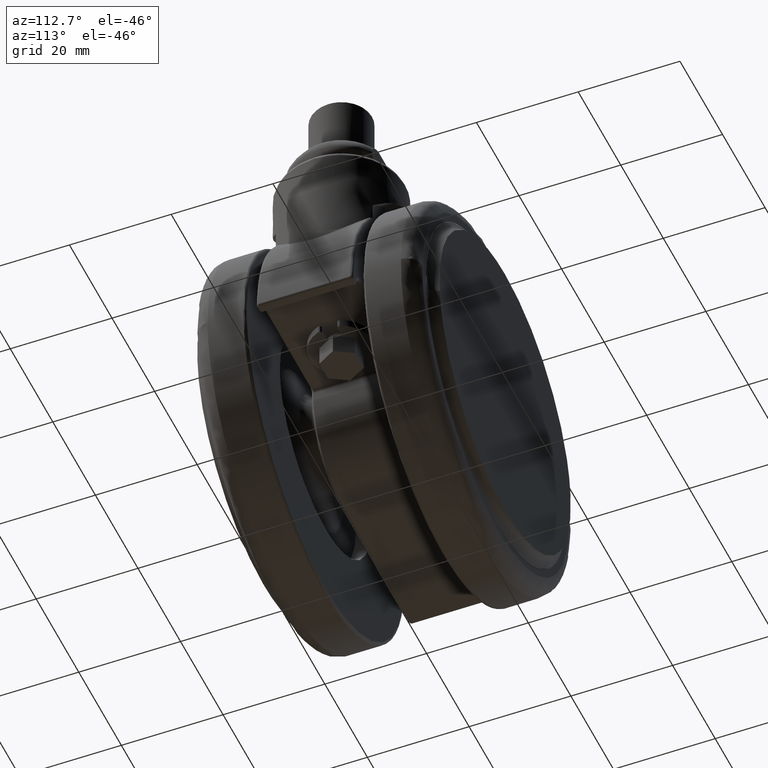
[diagram: clean part render]
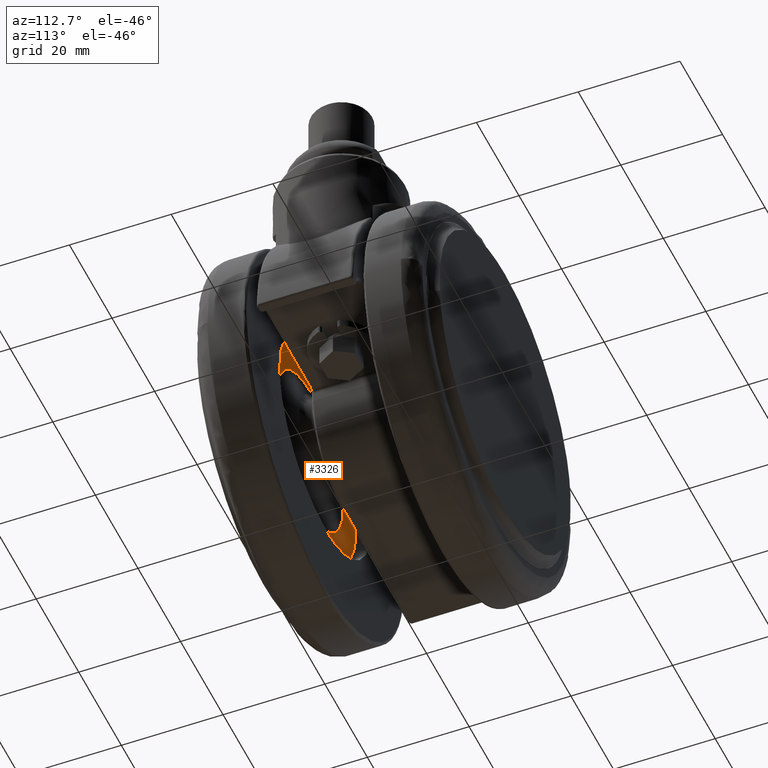
[diagram: same view with one face highlighted and labeled with its STEP entity id]
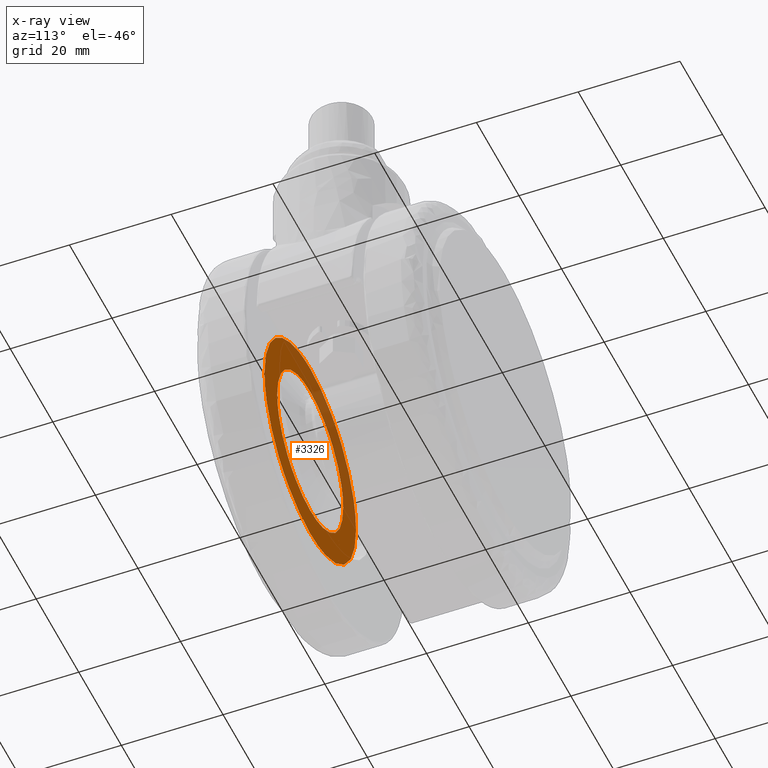
[diagram: x-ray of the same camera — body ghosted, the highlighted face saturated]
A machine part, auxiliary view. The second image highlights one B-rep face of the part: STEP entity #3326.
The next image is the same camera in x-ray: the body ghosted, the highlighted face saturated — about 31% of this face is hidden behind the body in this view.
In plain terms, the highlighted face is a freeform B-spline surface patch.
Its self-contained STEP definition (entity closure, byte-faithful):
#2337=CARTESIAN_POINT('',(-30.669495497487581,-14.499999882196141,-29.256697697972481));
#2338=VERTEX_POINT('',#2337);
#2339=CARTESIAN_POINT('',(-35.500000000000377,-14.500000000000000,-40.500001336303519));
#2340=VERTEX_POINT('',#2339);
#2341=CARTESIAN_POINT('',(-30.669495497487581,-14.499999882196141,-29.256697697972481));
#2342=CARTESIAN_POINT('',(-31.477567262422429,-14.499999890228009,-30.023263420706840));
#2343=CARTESIAN_POINT('',(-32.820606348267667,-14.499999906812141,-31.606069713385640));
#2344=CARTESIAN_POINT('',(-34.123550131824892,-14.499999931561360,-33.968152755133140));
#2345=CARTESIAN_POINT('',(-34.858708807733962,-14.499999952543130,-35.970684704439300));
#2346=CARTESIAN_POINT('',(-35.360992765207513,-14.499999974257310,-38.043108724709242));
#2347=CARTESIAN_POINT('',(-35.500111041050609,-14.499999990046110,-39.549980783685882));
#2348=CARTESIAN_POINT('',(-35.500000000000377,-14.500000000000000,-40.500001336303519));
#2349=B_SPLINE_CURVE_WITH_KNOTS('',3,(#2341,#2342,#2343,#2344,#2345,#2346,#2347,#2348),.UNSPECIFIED.,.F.,.U.,(4,1,1,1,1,4),(0.000000020668866,3.341425945185836,6.191487787261176,8.058725765944772,9.729445595256996,12.579482740062110),.UNSPECIFIED.);
#2350=EDGE_CURVE('',#2338,#2340,#2349,.T.);
#2360=CARTESIAN_POINT('',(-9.330504502513387,-14.499999882196120,-51.743302302027452));
#2361=VERTEX_POINT('',#2360);
#2367=CARTESIAN_POINT('',(-20.000000000000451,-14.500000000000000,-56.0));
#2368=VERTEX_POINT('',#2367);
#2369=CARTESIAN_POINT('',(-20.000000000000451,-14.500000000000000,-56.0));
#2370=CARTESIAN_POINT('',(-19.141922558592871,-14.499999990525779,-56.000059167950802));
#2371=CARTESIAN_POINT('',(-17.425786372958960,-14.499999971577671,-55.857146680003652));
#2372=CARTESIAN_POINT('',(-15.011811896413860,-14.499999944924490,-55.243052475639963));
#2373=CARTESIAN_POINT('',(-12.979409562662671,-14.499999922484390,-54.368568237031951));
#2374=CARTESIAN_POINT('',(-11.080252796863080,-14.499999901515370,-53.238421771153000));
#2375=CARTESIAN_POINT('',(-9.952887800787133,-14.499999889068000,-52.334011934243229));
#2376=CARTESIAN_POINT('',(-9.330504502513387,-14.499999882196120,-51.743302302027452));
#2377=B_SPLINE_CURVE_WITH_KNOTS('',3,(#2369,#2370,#2371,#2372,#2373,#2374,#2375,#2376),.UNSPECIFIED.,.F.,.U.,(4,1,1,1,1,4),(0.000000016778330,2.574226666153065,5.148469324482492,7.446871905364121,9.193672847624599,11.767899496996611),.UNSPECIFIED.);
#2378=EDGE_CURVE('',#2368,#2361,#2377,.T.);
#2380=CARTESIAN_POINT('',(-35.500000000000377,-14.500000000000000,-40.500001336303519));
#2381=CARTESIAN_POINT('',(-35.500134097890431,-14.500000000000011,-41.514476792830898));
#2382=CARTESIAN_POINT('',(-35.309461115132883,-14.499999999999950,-43.448264680210229));
#2383=CARTESIAN_POINT('',(-34.574879187454407,-14.500000000000130,-45.952643102220918));
#2384=CARTESIAN_POINT('',(-33.481816399635079,-14.500000000000000,-48.282208255777931));
#2385=CARTESIAN_POINT('',(-32.082876484610168,-14.499999999999940,-50.334768483793148));
#2386=CARTESIAN_POINT('',(-30.083909409520938,-14.499999999999931,-52.383425120723977));
#2387=CARTESIAN_POINT('',(-27.848297862227021,-14.500000000000190,-53.968250283793637));
#2388=CARTESIAN_POINT('',(-25.624393100417361,-14.500000000000060,-54.994985178710088));
#2389=CARTESIAN_POINT('',(-23.074979527317431,-14.499999999999851,-55.776929922890872));
#2390=CARTESIAN_POINT('',(-21.268135946908910,-14.499999999999980,-56.000370725086661));
#2391=CARTESIAN_POINT('',(-20.000000000000451,-14.500000000000000,-56.0));
#2392=B_SPLINE_CURVE_WITH_KNOTS('',3,(#2380,#2381,#2382,#2383,#2384,#2385,#2386,#2387,#2388,#2389,#2390,#2391),.UNSPECIFIED.,.F.,.U.,(4,1,1,1,1,1,1,1,1,4),(0.000000072784104,3.043400181008991,5.801523783213373,7.798784197326526,10.747120632136349,13.219848628159509,16.358386856784549,18.926287682553600,20.543104018920321,24.347380506074320),.UNSPECIFIED.);
#2393=EDGE_CURVE('',#2340,#2368,#2392,.T.);
#2416=CARTESIAN_POINT('',(-20.000000000000451,-14.500000000000000,-25.0));
#2417=VERTEX_POINT('',#2416);
#2418=CARTESIAN_POINT('',(-20.000000000000451,-14.500000000000000,-25.0));
#2419=CARTESIAN_POINT('',(-20.827430145764971,-14.499999990864231,-24.999953429217250));
#2420=CARTESIAN_POINT('',(-22.543571857271591,-14.499999971915900,-25.137719835419240));
#2421=CARTESIAN_POINT('',(-24.959965012056760,-14.499999945236141,-25.744781240391269));
#2422=CARTESIAN_POINT('',(-26.964133189063169,-14.499999923107749,-26.607145262452530));
#2423=CARTESIAN_POINT('',(-28.869352377237700,-14.499999902071840,-27.725661800804911));
#2424=CARTESIAN_POINT('',(-30.002674683321921,-14.499999889558680,-28.623767592406558));
#2425=CARTESIAN_POINT('',(-30.669495497487581,-14.499999882196141,-29.256697697972481));
#2426=B_SPLINE_CURVE_WITH_KNOTS('',3,(#2418,#2419,#2420,#2421,#2422,#2423,#2424,#2425),.UNSPECIFIED.,.F.,.U.,(4,1,1,1,1,4),(0.000000016778230,2.482288138000779,5.148469324481711,7.446871905363898,9.009798472909171,11.767899496996650),.UNSPECIFIED.);
#2427=EDGE_CURVE('',#2417,#2338,#2426,.T.);
#2429=CARTESIAN_POINT('',(-4.500000000000509,-14.500000000000000,-40.499998663696260));
#2430=VERTEX_POINT('',#2429);
#2431=CARTESIAN_POINT('',(-4.500000000000509,-14.500000000000000,-40.499998663696260));
#2432=CARTESIAN_POINT('',(-4.499920812351644,-14.499999999999920,-39.612335621088263));
#2433=CARTESIAN_POINT('',(-4.642028402552882,-14.500000000000110,-37.963856615322953));
#2434=CARTESIAN_POINT('',(-5.321554897228752,-14.500000000000011,-35.250237761994519));
#2435=CARTESIAN_POINT('',(-6.477112061502640,-14.499999999999799,-32.727338359356942));
#2436=CARTESIAN_POINT('',(-8.035961741153928,-14.500000000000361,-30.556992094440929));
#2437=CARTESIAN_POINT('',(-9.561993665268687,-14.499999999999840,-28.983440899603529));
#2438=CARTESIAN_POINT('',(-11.302387139207561,-14.499999999999860,-27.599192324685770));
#2439=CARTESIAN_POINT('',(-13.509476504762549,-14.500000000000950,-26.330850927265221));
#2440=CARTESIAN_POINT('',(-16.481179085050019,-14.499999999999449,-25.277829996310651));
#2441=CARTESIAN_POINT('',(-18.731880648638601,-14.500000000000350,-24.999670758941409));
#2442=CARTESIAN_POINT('',(-20.000000000000451,-14.500000000000000,-25.0));
#2443=B_SPLINE_CURVE_WITH_KNOTS('',3,(#2431,#2432,#2433,#2434,#2435,#2436,#2437,#2438,#2439,#2440,#2441,#2442),.UNSPECIFIED.,.F.,.U.,(4,1,1,1,1,1,1,1,1,4),(0.000000072740015,2.662977138853307,4.945555510927047,8.369422413990852,10.937330572854560,12.934505017157200,14.931788349140790,17.594783111629710,20.543104018913411,24.347380506074060),.UNSPECIFIED.);
#2444=EDGE_CURVE('',#2430,#2417,#2443,.T.);
#2446=CARTESIAN_POINT('',(-9.330504502513387,-14.499999882196120,-51.743302302027452));
#2447=CARTESIAN_POINT('',(-8.641327760724145,-14.499999889047251,-51.089421006870239));
#2448=CARTESIAN_POINT('',(-7.340397624084070,-14.499999904601580,-49.604915257372213));
#2449=CARTESIAN_POINT('',(-5.794174157349572,-14.499999932285039,-46.962771294791693));
#2450=CARTESIAN_POINT('',(-4.748292163389371,-14.499999964647230,-43.874093999641289));
#2451=CARTESIAN_POINT('',(-4.499794439832975,-14.499999987986479,-41.646582658005272));
#2452=CARTESIAN_POINT('',(-4.500000000000509,-14.500000000000000,-40.499998663696260));
#2453=B_SPLINE_CURVE_WITH_KNOTS('',3,(#2446,#2447,#2448,#2449,#2450,#2451,#2452),.UNSPECIFIED.,.F.,.U.,(4,1,1,1,4),(0.000000020669406,2.850037165460256,5.896649225045184,9.139778525155560,12.579482740062341),.UNSPECIFIED.);
#2454=EDGE_CURVE('',#2361,#2430,#2453,.T.);
#3222=CARTESIAN_POINT('',(-43.647849916658032,-14.500000000000000,-64.147849916657648));
#3223=CARTESIAN_POINT('',(-43.647849916658032,-14.500000000000000,-16.852148929992470));
#3224=CARTESIAN_POINT('',(3.647851070007004,-14.500000000000000,-64.147849916657648));
#3225=CARTESIAN_POINT('',(3.647851070007004,-14.500000000000000,-16.852148929992470));
#3226=B_SPLINE_SURFACE_WITH_KNOTS('',1,1,((#3222,#3224),(#3223,#3225)),.UNSPECIFIED.,.F.,.F.,.U.,(2,2),(2,2),(0.0,47.295700986665182),(0.0,47.295700986665040),.UNSPECIFIED.);
#3227=CARTESIAN_POINT('',(-41.500000000000377,-14.500000000000000,-40.500001720237272));
#3228=VERTEX_POINT('',#3227);
#3229=CARTESIAN_POINT('',(-20.000000000000451,-14.500000000000000,-62.0));
#3230=VERTEX_POINT('',#3229);
#3231=CARTESIAN_POINT('',(-41.500000000000377,-14.500000000000000,-40.500001720237272));
#3232=CARTESIAN_POINT('',(-41.500126563532710,-14.499999999999980,-41.775255317484962));
#3233=CARTESIAN_POINT('',(-41.331233791522948,-14.500000000000080,-43.666078085760439));
#3234=CARTESIAN_POINT('',(-40.685130606834193,-14.499999999999860,-46.543429417008483));
#3235=CARTESIAN_POINT('',(-39.736181730212671,-14.500000000000281,-49.247850240463592));
#3236=CARTESIAN_POINT('',(-37.979035355501850,-14.499999999999730,-52.511443525608527));
#3237=CARTESIAN_POINT('',(-35.816539703963826,-14.500000000000369,-55.196466229677043));
#3238=CARTESIAN_POINT('',(-33.597369640632770,-14.499999999999909,-57.207497910752899));
#3239=CARTESIAN_POINT('',(-31.425328932212249,-14.500000000000110,-58.787740226841613));
#3240=CARTESIAN_POINT('',(-29.137491614297002,-14.499999999999950,-60.028706393164931));
#3241=CARTESIAN_POINT('',(-26.508529133303369,-14.499999999999950,-61.042760856960477));
#3242=CARTESIAN_POINT('',(-23.605828955675850,-14.500000000000430,-61.788874292361577));
#3243=CARTESIAN_POINT('',(-21.319221615729589,-14.499999999999179,-62.000125565071663));
#3244=CARTESIAN_POINT('',(-20.000000000000451,-14.500000000000000,-62.0));
#3245=B_SPLINE_CURVE_WITH_KNOTS('',3,(#3231,#3232,#3233,#3234,#3235,#3236,#3237,#3238,#3239,#3240,#3241,#3242,#3243,#3244),.UNSPECIFIED.,.F.,.U.,(4,1,1,1,1,1,1,1,1,1,1,4),(0.000000067775531,3.825727720787132,5.672653906694070,8.838812937935447,12.400726099247921,16.754205018996810,19.128760438035300,21.371450701752519,24.801436467335218,26.912209458372960,29.814522042103981,33.772173035191301),.UNSPECIFIED.);
#3246=EDGE_CURVE('',#3228,#3230,#3245,.T.);
#3247=ORIENTED_EDGE('',*,*,#3246,.F.);
#3248=CARTESIAN_POINT('',(-34.799623111374622,-14.499999999995120,-24.904451362838429));
#3249=VERTEX_POINT('',#3248);
#3250=CARTESIAN_POINT('',(-34.799623111374622,-14.499999999995120,-24.904451362838429));
#3251=CARTESIAN_POINT('',(-35.623664166251721,-14.499999999995349,-25.686392687299101));
#3252=CARTESIAN_POINT('',(-37.330429395316848,-14.499999999996000,-27.584573136799900));
#3253=CARTESIAN_POINT('',(-39.158362510062631,-14.499999999996829,-30.534204767516151));
#3254=CARTESIAN_POINT('',(-40.379103388177462,-14.499999999997851,-33.478379541539233));
#3255=CARTESIAN_POINT('',(-41.251729994884037,-14.499999999998670,-36.637695225416408));
#3256=CARTESIAN_POINT('',(-41.500255907731862,-14.499999999999529,-39.000459270632852));
#3257=CARTESIAN_POINT('',(-41.500000000000377,-14.500000000000000,-40.500001720237272));
#3258=B_SPLINE_CURVE_WITH_KNOTS('',3,(#3250,#3251,#3252,#3253,#3254,#3255,#3256,#3257),.UNSPECIFIED.,.F.,.U.,(4,1,1,1,1,4),(0.000000019476680,3.407994578102032,7.633935009487921,10.360314207968630,12.950399338020461,17.448959929504721),.UNSPECIFIED.);
#3259=EDGE_CURVE('',#3249,#3228,#3258,.T.);
#3260=ORIENTED_EDGE('',*,*,#3259,.F.);
#3261=CARTESIAN_POINT('',(-20.000000000000451,-14.500000000000000,-19.0));
#3262=VERTEX_POINT('',#3261);
#3263=CARTESIAN_POINT('',(-20.000000000000451,-14.500000000000000,-19.0));
#3264=CARTESIAN_POINT('',(-21.742905547282579,-14.499999999999430,-18.999515815371570));
#3265=CARTESIAN_POINT('',(-24.165637628945039,-14.499999999998620,-19.296323558246709));
#3266=CARTESIAN_POINT('',(-27.753557946539811,-14.499999999997449,-20.369502829508068));
#3267=CARTESIAN_POINT('',(-31.129337154596680,-14.499999999996289,-21.917677616863440));
#3268=CARTESIAN_POINT('',(-33.566487643095911,-14.499999999995570,-23.733730930152149));
#3269=CARTESIAN_POINT('',(-34.799623111374622,-14.499999999995120,-24.904451362838429));
#3270=B_SPLINE_CURVE_WITH_KNOTS('',3,(#3263,#3264,#3265,#3266,#3267,#3268,#3269),.UNSPECIFIED.,.F.,.U.,(4,1,1,1,4),(0.000000015953191,5.228536446449985,7.268949137432548,11.222210434410281,16.323215634763461),.UNSPECIFIED.);
#3271=EDGE_CURVE('',#3262,#3249,#3270,.T.);
#3272=ORIENTED_EDGE('',*,*,#3271,.F.);
#3273=CARTESIAN_POINT('',(1.499999999999478,-14.500000000000000,-40.499998279762671));
#3274=VERTEX_POINT('',#3273);
#3275=CARTESIAN_POINT('',(1.499999999999478,-14.500000000000000,-40.499998279762671));
#3276=CARTESIAN_POINT('',(1.500449844663022,-14.500000000000000,-38.784960204534833));
#3277=CARTESIAN_POINT('',(1.166626001089121,-14.500000000000011,-36.014821999539393));
#3278=CARTESIAN_POINT('',(-0.041494570621201,-14.500000000000011,-32.281063759132707));
#3279=CARTESIAN_POINT('',(-1.410089226553845,-14.499999999999950,-29.562219803624419));
#3280=CARTESIAN_POINT('',(-3.162280336426482,-14.499999999999950,-27.025039854065039));
#3281=CARTESIAN_POINT('',(-5.450476891219069,-14.500000000000369,-24.515676767352449));
#3282=CARTESIAN_POINT('',(-8.117549607894992,-14.499999999999821,-22.473454670870481));
#3283=CARTESIAN_POINT('',(-10.982425533788930,-14.500000000000060,-20.919683505544430));
#3284=CARTESIAN_POINT('',(-13.775909223862801,-14.499999999999870,-19.832165038661429));
#3285=CARTESIAN_POINT('',(-16.877845152175698,-14.500000000000430,-19.145607895429411));
#3286=CARTESIAN_POINT('',(-19.032579496497700,-14.499999999999440,-18.999976525133711));
#3287=CARTESIAN_POINT('',(-20.000000000000451,-14.500000000000000,-19.0));
#3288=B_SPLINE_CURVE_WITH_KNOTS('',3,(#3275,#3276,#3277,#3278,#3279,#3280,#3281,#3282,#3283,#3284,#3285,#3286,#3287),.UNSPECIFIED.,.F.,.U.,(4,1,1,1,1,1,1,1,1,1,4),(0.000000067791952,5.144973596269182,8.311120704678178,11.741122321895990,14.247643420967851,17.545664572883080,21.899123246420942,24.273747802952240,27.307979842771552,30.869903341896212,33.772173035191571),.UNSPECIFIED.);
#3289=EDGE_CURVE('',#3274,#3262,#3288,.T.);
#3290=ORIENTED_EDGE('',*,*,#3289,.F.);
#3291=CARTESIAN_POINT('',(-5.200376888626294,-14.499999999995120,-56.095548637161563));
#3292=VERTEX_POINT('',#3291);
#3293=CARTESIAN_POINT('',(-5.200376888626294,-14.499999999995120,-56.095548637161563));
#3294=CARTESIAN_POINT('',(-4.673004635568210,-14.499999999995300,-55.595093029453253));
#3295=CARTESIAN_POINT('',(-3.386669956082622,-14.499999999995680,-54.244086348368953));
#3296=CARTESIAN_POINT('',(-1.746532601416653,-14.499999999996410,-51.998783076257531));
#3297=CARTESIAN_POINT('',(-0.486575051232578,-14.499999999997240,-49.626228268553021));
#3298=CARTESIAN_POINT('',(0.391643334613248,-14.499999999997810,-47.430119634242828));
#3299=CARTESIAN_POINT('',(1.231544210236715,-14.499999999998639,-44.498608731616827));
#3300=CARTESIAN_POINT('',(1.500276253445953,-14.499999999999689,-42.090423440763018));
#3301=CARTESIAN_POINT('',(1.499999999999478,-14.500000000000000,-40.499998279762671));
#3302=B_SPLINE_CURVE_WITH_KNOTS('',3,(#3293,#3294,#3295,#3296,#3297,#3298,#3299,#3300,#3301),.UNSPECIFIED.,.F.,.U.,(4,1,1,1,1,1,4),(0.000000019467510,2.181107222164734,5.589122767698422,8.315521778982724,10.223987699172371,12.677759647552200,17.448959929504731),.UNSPECIFIED.);
#3303=EDGE_CURVE('',#3292,#3274,#3302,.T.);
#3304=ORIENTED_EDGE('',*,*,#3303,.F.);
#3305=CARTESIAN_POINT('',(-20.000000000000451,-14.500000000000000,-62.0));
#3306=CARTESIAN_POINT('',(-18.299627330899732,-14.499999999999380,-62.000404290644099));
#3307=CARTESIAN_POINT('',(-15.536789422417490,-14.499999999998639,-61.670436216801917));
#3308=CARTESIAN_POINT('',(-12.128493689141211,-14.499999999997311,-60.573276969736717));
#3309=CARTESIAN_POINT('',(-9.857818927818455,-14.499999999996710,-59.499014316674057));
#3310=CARTESIAN_POINT('',(-7.562325637628026,-14.499999999995870,-58.114535277060142));
#3311=CARTESIAN_POINT('',(-6.094497777028549,-14.499999999995531,-56.944207574247940));
#3312=CARTESIAN_POINT('',(-5.200376888626294,-14.499999999995120,-56.095548637161563));
#3313=B_SPLINE_CURVE_WITH_KNOTS('',3,(#3305,#3306,#3307,#3308,#3309,#3310,#3311,#3312),.UNSPECIFIED.,.F.,.U.,(4,1,1,1,1,4),(0.000000015942994,5.101006399452672,8.289112240918488,10.712101588595340,12.624987960179590,16.323215634763461),.UNSPECIFIED.);
#3314=EDGE_CURVE('',#3230,#3292,#3313,.T.);
#3315=ORIENTED_EDGE('',*,*,#3314,.F.);
#3316=EDGE_LOOP('',(#3247,#3260,#3272,#3290,#3304,#3315));
#3317=FACE_OUTER_BOUND('',#3316,.T.);
#3318=ORIENTED_EDGE('',*,*,#2444,.T.);
#3319=ORIENTED_EDGE('',*,*,#2427,.T.);
#3320=ORIENTED_EDGE('',*,*,#2350,.T.);
#3321=ORIENTED_EDGE('',*,*,#2393,.T.);
#3322=ORIENTED_EDGE('',*,*,#2378,.T.);
#3323=ORIENTED_EDGE('',*,*,#2454,.T.);
#3324=EDGE_LOOP('',(#3318,#3319,#3320,#3321,#3322,#3323));
#3325=FACE_BOUND('',#3324,.T.);
#3326=ADVANCED_FACE('',(#3317,#3325),#3226,.T.);